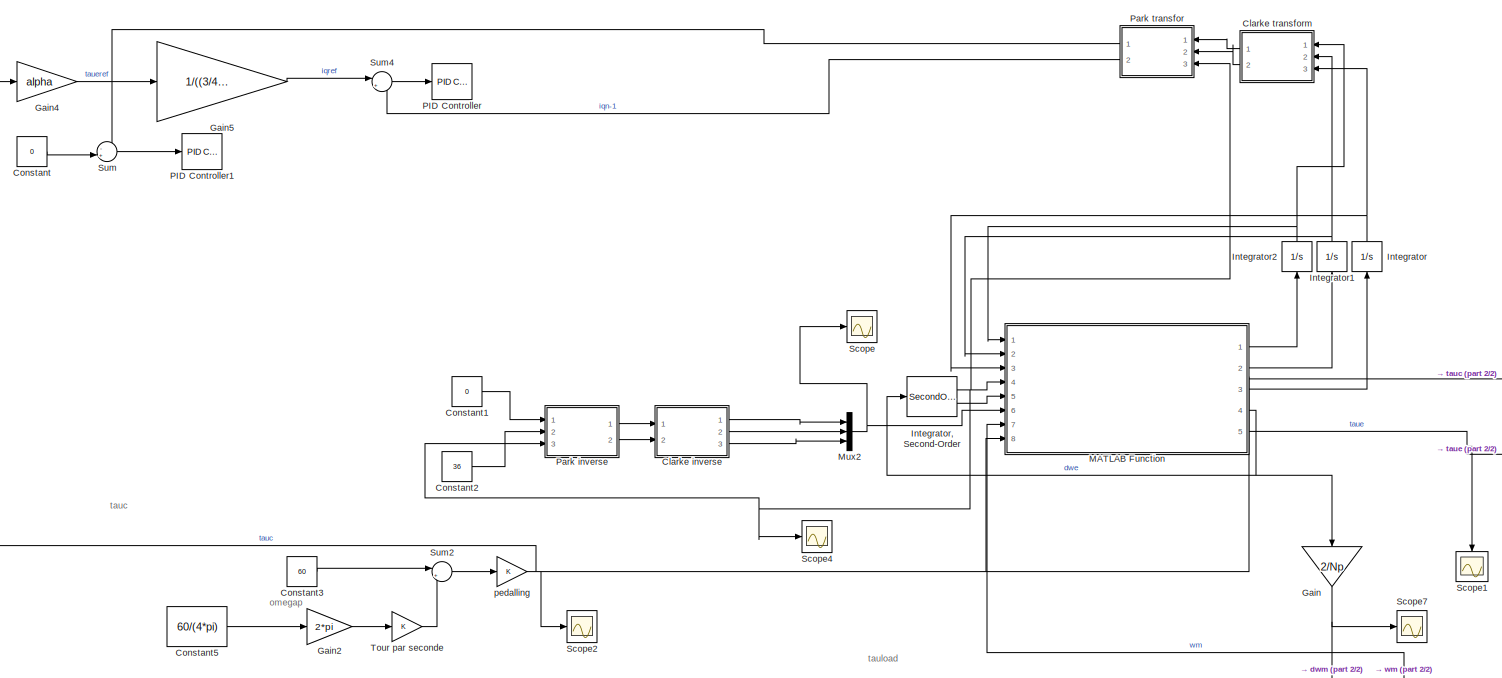
[diagram: root canvas - part 1/2, most of the canvas]
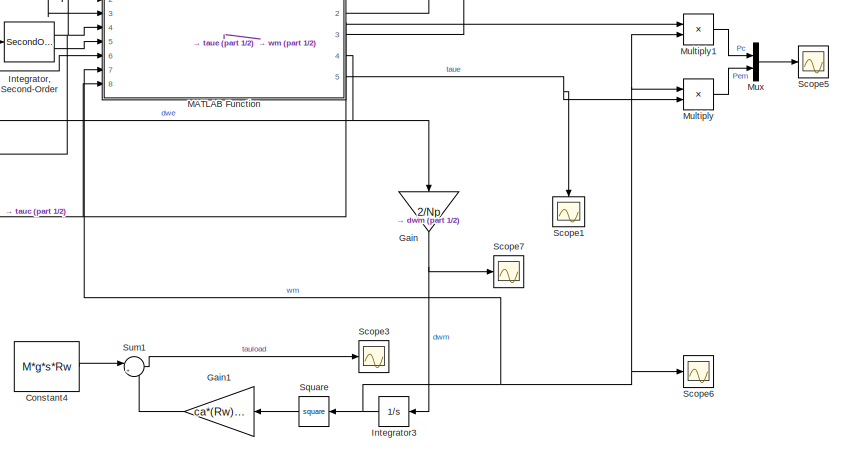
[diagram: root canvas - part 2/2, bottom right region]
MODEL slx_9deb516235e7
KIND model
CONFIG AbsTol = auto
CONFIG EnableMultiTasking = off
CONFIG FixedStep = auto
CONFIG MaxStep = auto
CONFIG MinStep = auto
CONFIG RelTol = 1e-3
CONFIG SampleTimeConstraint = Unconstrained
CONFIG Solver = VariableStepAuto
CONFIG SolverName = VariableStepAuto
CONFIG StartTime = 0.0
CONFIG StopTime = 100
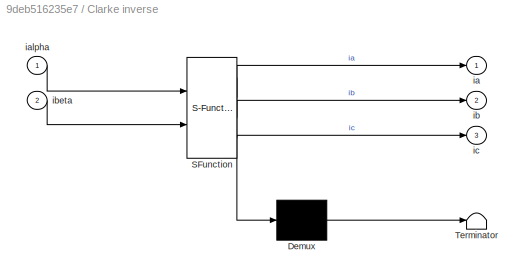
BLOCK [SubSystem] Clarke inverse
  ErrorFcn = Stateflow.Translate.translate
  PermitHierarchicalResolution = ExplicitOnly
  Ports = [2, 3]
  RequestExecContextInheritance = off
  SFBlockType = MATLAB Function
  TreatAsAtomicUnit = on
BLOCK [Demux] Clarke inverse/ Demux 
  Outputs = 1
  Ports = [1, 1]
BLOCK [S-Function] Clarke inverse/ SFunction 
  EnableBusSupport = on
  FunctionName = sf_sfun
  PortCounts = [2 4]
  Ports = [2, 4]
  SFcnIsStateOwnerBlock = off
  SFunctionDeploymentMode = off
  Tag = Stateflow S-Function equations_dyn_snchrone_triphase 1
BLOCK [Terminator] Clarke inverse/ Terminator 
BLOCK [Outport] Clarke inverse/ia
  IconDisplay = Port number
BLOCK [Inport] Clarke inverse/ialpha
  IconDisplay = Port number
BLOCK [Outport] Clarke inverse/ib
  IconDisplay = Port number
  Port = 2
BLOCK [Inport] Clarke inverse/ibeta
  IconDisplay = Port number
  Port = 2
BLOCK [Outport] Clarke inverse/ic
  IconDisplay = Port number
  Port = 3
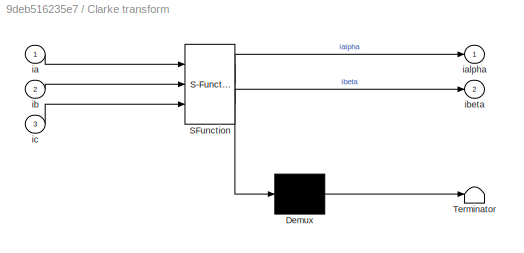
BLOCK [SubSystem] Clarke transform 
  ErrorFcn = Stateflow.Translate.translate
  PermitHierarchicalResolution = ExplicitOnly
  Ports = [3, 2]
  RequestExecContextInheritance = off
  SFBlockType = MATLAB Function
  TreatAsAtomicUnit = on
BLOCK [Demux] Clarke transform / Demux 
  Outputs = 1
  Ports = [1, 1]
BLOCK [S-Function] Clarke transform / SFunction 
  EnableBusSupport = on
  FunctionName = sf_sfun
  PortCounts = [3 3]
  Ports = [3, 3]
  SFcnIsStateOwnerBlock = off
  SFunctionDeploymentMode = off
  Tag = Stateflow S-Function equations_dyn_snchrone_triphase 3
BLOCK [Terminator] Clarke transform / Terminator 
BLOCK [Inport] Clarke transform /ia
  IconDisplay = Port number
BLOCK [Outport] Clarke transform /ialpha
  IconDisplay = Port number
BLOCK [Inport] Clarke transform /ib
  IconDisplay = Port number
  Port = 2
BLOCK [Outport] Clarke transform /ibeta
  IconDisplay = Port number
  Port = 2
BLOCK [Inport] Clarke transform /ic
  IconDisplay = Port number
  Port = 3
BLOCK [Constant] Constant
  Commented = on
  Value = 0
BLOCK [Constant] Constant1
  Value = 0
BLOCK [Constant] Constant2
  Value = 36
BLOCK [Constant] Constant3
  Value = 60
BLOCK [Constant] Constant4
  Value = M*g*s*Rw
BLOCK [Constant] Constant5
  Value = 60/(4*pi)
BLOCK [Gain] Gain
  Gain = 2/Np
  OutDataTypeStr = Inherit: Inherit via internal rule
  ParamDataTypeStr = Inherit: Inherit via internal rule
  SaturateOnIntegerOverflow = off
BLOCK [Gain] Gain1
  Gain = ca*(Rw)^3
  OutDataTypeStr = Inherit: Inherit via internal rule
  ParamDataTypeStr = Inherit: Inherit via internal rule
  SaturateOnIntegerOverflow = off
BLOCK [Gain] Gain2
  Gain = 2*pi
  OutDataTypeStr = Inherit: Inherit via internal rule
  ParamDataTypeStr = Inherit: Inherit via internal rule
  SaturateOnIntegerOverflow = off
BLOCK [Gain] Gain4
  Commented = on
  Gain = alpha
  OutDataTypeStr = Inherit: Inherit via internal rule
  ParamDataTypeStr = Inherit: Inherit via internal rule
  SaturateOnIntegerOverflow = off
BLOCK [Gain] Gain5
  Commented = on
  Gain = 1/((3/4)*Np*Lambdam)
  OutDataTypeStr = Inherit: Inherit via internal rule
  ParamDataTypeStr = Inherit: Inherit via internal rule
  SaturateOnIntegerOverflow = off
BLOCK [Integrator] Integrator
  Ports = [1, 1]
BLOCK [SecondOrderIntegrator] Integrator, Second-Order
  Ports = [1, 2]
BLOCK [Integrator] Integrator1
  Ports = [1, 1]
BLOCK [Integrator] Integrator2
  Ports = [1, 1]
BLOCK [Integrator] Integrator3
  Ports = [1, 1]
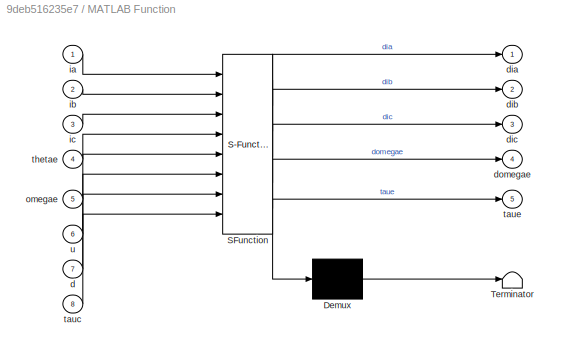
BLOCK [SubSystem] MATLAB Function
  ErrorFcn = Stateflow.Translate.translate
  PermitHierarchicalResolution = ExplicitOnly
  Ports = [8, 5]
  RequestExecContextInheritance = off
  SFBlockType = MATLAB Function
  TreatAsAtomicUnit = on
BLOCK [Demux] MATLAB Function/ Demux 
  Outputs = 1
  Ports = [1, 1]
BLOCK [S-Function] MATLAB Function/ SFunction 
  EnableBusSupport = on
  FunctionName = sf_sfun
  PortCounts = [8 6]
  Ports = [8, 6]
  SFcnIsStateOwnerBlock = off
  SFunctionDeploymentMode = off
  Tag = Stateflow S-Function equations_dyn_snchrone_triphase 2
BLOCK [Terminator] MATLAB Function/ Terminator 
BLOCK [Inport] MATLAB Function/d
  IconDisplay = Port number
  Port = 7
BLOCK [Outport] MATLAB Function/dia
  IconDisplay = Port number
BLOCK [Outport] MATLAB Function/dib
  IconDisplay = Port number
  Port = 2
BLOCK [Outport] MATLAB Function/dic
  IconDisplay = Port number
  Port = 3
BLOCK [Outport] MATLAB Function/domegae
  IconDisplay = Port number
  Port = 4
BLOCK [Inport] MATLAB Function/ia
  IconDisplay = Port number
BLOCK [Inport] MATLAB Function/ib
  IconDisplay = Port number
  Port = 2
BLOCK [Inport] MATLAB Function/ic
  IconDisplay = Port number
  Port = 3
BLOCK [Inport] MATLAB Function/omegae
  IconDisplay = Port number
  Port = 5
BLOCK [Inport] MATLAB Function/tauc
  IconDisplay = Port number
  Port = 8
BLOCK [Outport] MATLAB Function/taue
  IconDisplay = Port number
  Port = 5
BLOCK [Inport] MATLAB Function/thetae
  IconDisplay = Port number
  Port = 4
BLOCK [Inport] MATLAB Function/u
  IconDisplay = Port number
  Port = 6
BLOCK [Product] Multiply
  InputSameDT = off
  OutDataTypeStr = Inherit: Inherit via internal rule
  Ports = [2, 1]
  RndMeth = Floor
  SaturateOnIntegerOverflow = off
BLOCK [Product] Multiply1
  InputSameDT = off
  OutDataTypeStr = Inherit: Inherit via internal rule
  Ports = [2, 1]
  RndMeth = Floor
  SaturateOnIntegerOverflow = off
BLOCK [Mux] Mux
  DisplayOption = bar
  Inputs = 2
  Ports = [2, 1]
BLOCK [Mux] Mux2
  DisplayOption = bar
  Inputs = 3
  Ports = [3, 1]
BLOCK [Reference] PID Controller  REF=simulink/Continuous/PID Controller
  Commented = on
  Ports = [1, 1]
  SourceBlock = simulink/Continuous/PID Controller
  SourceProductBaseCode = SL
  SourceProductName = Simulink
  SourceType = PID 1dof
BLOCK [Reference] PID Controller1  REF=simulink/Continuous/PID Controller
  Commented = on
  Ports = [1, 1]
  SourceBlock = simulink/Continuous/PID Controller
  SourceProductBaseCode = SL
  SourceProductName = Simulink
  SourceType = PID 1dof
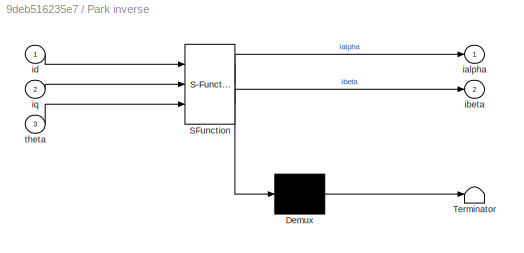
BLOCK [SubSystem] Park inverse 
  ErrorFcn = Stateflow.Translate.translate
  PermitHierarchicalResolution = ExplicitOnly
  Ports = [3, 2]
  RequestExecContextInheritance = off
  SFBlockType = MATLAB Function
  TreatAsAtomicUnit = on
BLOCK [Demux] Park inverse / Demux 
  Outputs = 1
  Ports = [1, 1]
BLOCK [S-Function] Park inverse / SFunction 
  EnableBusSupport = on
  FunctionName = sf_sfun
  PortCounts = [3 3]
  Ports = [3, 3]
  SFcnIsStateOwnerBlock = off
  SFunctionDeploymentMode = off
  Tag = Stateflow S-Function equations_dyn_snchrone_triphase 4
BLOCK [Terminator] Park inverse / Terminator 
BLOCK [Outport] Park inverse /ialpha
  IconDisplay = Port number
BLOCK [Outport] Park inverse /ibeta
  IconDisplay = Port number
  Port = 2
BLOCK [Inport] Park inverse /id
  IconDisplay = Port number
BLOCK [Inport] Park inverse /iq
  IconDisplay = Port number
  Port = 2
BLOCK [Inport] Park inverse /theta
  IconDisplay = Port number
  Port = 3
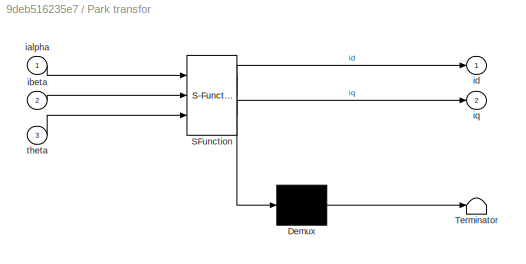
BLOCK [SubSystem] Park transfor 
  ErrorFcn = Stateflow.Translate.translate
  PermitHierarchicalResolution = ExplicitOnly
  Ports = [3, 2]
  RequestExecContextInheritance = off
  SFBlockType = MATLAB Function
  TreatAsAtomicUnit = on
BLOCK [Demux] Park transfor / Demux 
  Outputs = 1
  Ports = [1, 1]
BLOCK [S-Function] Park transfor / SFunction 
  EnableBusSupport = on
  FunctionName = sf_sfun
  PortCounts = [3 3]
  Ports = [3, 3]
  SFcnIsStateOwnerBlock = off
  SFunctionDeploymentMode = off
  Tag = Stateflow S-Function equations_dyn_snchrone_triphase 5
BLOCK [Terminator] Park transfor / Terminator 
BLOCK [Inport] Park transfor /ialpha
  IconDisplay = Port number
BLOCK [Inport] Park transfor /ibeta
  IconDisplay = Port number
  Port = 2
BLOCK [Outport] Park transfor /id
  IconDisplay = Port number
BLOCK [Outport] Park transfor /iq
  IconDisplay = Port number
  Port = 2
BLOCK [Inport] Park transfor /theta
  IconDisplay = Port number
  Port = 3
BLOCK [Scope] Scope
  Floating = off
  NumInputPorts = 1
  Ports = [1]
  ScopeSpecificationString = Simulink.scopes.TimeScopeBlockCfg('CurrentConfiguration', extmgr.ConfigurationSet(extmgr.Configuration('Core','General UI',true),extmgr.Configuration('Core','Source UI',true),extmgr.Configuration('Sources','WiredSimulink',true),extmgr.Configuration('Visuals','Time Domain',true,'SerializedDisplays',{struct('MinYLimReal','-34.59319','MaxYLimReal','33.85765','YLabelReal','','MinYLimMag','0.00000','Ma...<+1402ch>
BLOCK [Scope] Scope1
  Floating = off
  NumInputPorts = 1
  Ports = [1]
  ScopeSpecificationString = Simulink.scopes.TimeScopeBlockCfg('CurrentConfiguration', extmgr.ConfigurationSet(extmgr.Configuration('Core','General UI',true,'FigureColor',[0.941176470588235 0.941176470588235 0.941176470588235]),extmgr.Configuration('Core','Source UI',true),extmgr.Configuration('Sources','WiredSimulink',true,'DataLoggingVariableName','ScopeData3'),extmgr.Configuration('Visuals','Time Domain',true,'SerializedDi...<+1640ch>
BLOCK [Scope] Scope2
  Floating = off
  NumInputPorts = 1
  Ports = [1]
  ScopeSpecificationString = Simulink.scopes.TimeScopeBlockCfg('CurrentConfiguration', extmgr.ConfigurationSet(extmgr.Configuration('Core','General UI',true),extmgr.Configuration('Core','Source UI',true),extmgr.Configuration('Sources','WiredSimulink',true,'DataLoggingVariableName','ScopeData1'),extmgr.Configuration('Visuals','Time Domain',true,'SerializedDisplays',{struct('MinYLimReal','20.00000','MaxYLimReal','40.00000','YLa...<+1369ch>
BLOCK [Scope] Scope3
  Floating = off
  NumInputPorts = 1
  Ports = [1]
  ScopeSpecificationString = Simulink.scopes.TimeScopeBlockCfg('CurrentConfiguration', extmgr.ConfigurationSet(extmgr.Configuration('Core','General UI',true),extmgr.Configuration('Core','Source UI',true),extmgr.Configuration('Sources','WiredSimulink',true,'DataLoggingVariableName','ScopeData2'),extmgr.Configuration('Visuals','Time Domain',true,'SerializedDisplays',{struct('MinYLimReal','-1.00000','MaxYLimReal','1.00000','YLab...<+1366ch>
BLOCK [Scope] Scope4
  Floating = off
  NumInputPorts = 1
  Ports = [1]
  ScopeSpecificationString = Simulink.scopes.TimeScopeBlockCfg('CurrentConfiguration', extmgr.ConfigurationSet(extmgr.Configuration('Core','General UI',true),extmgr.Configuration('Core','Source UI',true),extmgr.Configuration('Sources','WiredSimulink',true,'DataLoggingVariableName','ScopeData4'),extmgr.Configuration('Visuals','Time Domain',true,'SerializedDisplays',{struct('MinYLimReal','-1.00000','MaxYLimReal','1.00000','YLab...<+1414ch>
BLOCK [Scope] Scope5
  Floating = off
  NumInputPorts = 1
  Ports = [1]
  ScopeSpecificationString = Simulink.scopes.TimeScopeBlockCfg('CurrentConfiguration', extmgr.ConfigurationSet(extmgr.Configuration('Core','General UI',true,'FigureColor',[0.941176470588235 0.941176470588235 0.941176470588235]),extmgr.Configuration('Core','Source UI',true),extmgr.Configuration('Sources','WiredSimulink',true,'DataLoggingVariableName','ScopeData1'),extmgr.Configuration('Visuals','Time Domain',true,'SerializedDi...<+2234ch>
BLOCK [Scope] Scope6
  Floating = off
  NumInputPorts = 1
  Ports = [1]
  ScopeSpecificationString = Simulink.scopes.TimeScopeBlockCfg('CurrentConfiguration', extmgr.ConfigurationSet(extmgr.Configuration('Core','General UI',true,'FigureColor',[0.941176470588235 0.941176470588235 0.941176470588235]),extmgr.Configuration('Core','Source UI',true),extmgr.Configuration('Sources','WiredSimulink',true,'DataLoggingVariableName','ScopeData2'),extmgr.Configuration('Visuals','Time Domain',true,'SerializedDi...<+1657ch>
BLOCK [Scope] Scope7
  Floating = off
  NumInputPorts = 1
  Ports = [1]
  ScopeSpecificationString = Simulink.scopes.TimeScopeBlockCfg('CurrentConfiguration', extmgr.ConfigurationSet(extmgr.Configuration('Core','General UI',true),extmgr.Configuration('Core','Source UI',true),extmgr.Configuration('Sources','WiredSimulink',true,'DataLoggingVariableName','ScopeData3'),extmgr.Configuration('Visuals','Time Domain',true,'SerializedDisplays',{struct('MinYLimReal','0.00386','MaxYLimReal','0.00956','YLabe...<+1360ch>
BLOCK [Math] Square
  Operator = square
  OutputSignalType = real
  Ports = [1, 1]
BLOCK [Sum] Sum
  Commented = on
  IconShape = round
  InputSameDT = off
  Inputs = -+|
  OutDataTypeStr = Inherit: Inherit via internal rule
  Ports = [2, 1]
  SaturateOnIntegerOverflow = off
BLOCK [Sum] Sum1
  IconShape = round
  InputSameDT = off
  Inputs = |++
  OutDataTypeStr = Inherit: Inherit via internal rule
  Ports = [2, 1]
  SaturateOnIntegerOverflow = off
BLOCK [Sum] Sum2
  IconShape = round
  InputSameDT = off
  Inputs = |+-
  OutDataTypeStr = Inherit: Inherit via internal rule
  Ports = [2, 1]
  SaturateOnIntegerOverflow = off
BLOCK [Sum] Sum4
  Commented = on
  IconShape = round
  InputSameDT = off
  Inputs = |+-
  OutDataTypeStr = Inherit: Inherit via internal rule
  Ports = [2, 1]
  SaturateOnIntegerOverflow = off
BLOCK [Gain] Tour par seconde
  OutDataTypeStr = Inherit: Inherit via internal rule
  ParamDataTypeStr = Inherit: Inherit via internal rule
  SaturateOnIntegerOverflow = off
BLOCK [Gain] pedalling 
  OutDataTypeStr = Inherit: Inherit via internal rule
  ParamDataTypeStr = Inherit: Inherit via internal rule
  SaturateOnIntegerOverflow = off
ANNOTATION (root): omegap
ANNOTATION (root): tauc
ANNOTATION (root): tauload
LINE Clarke inverse:1 -> Mux2:1
LINE Clarke inverse:2 -> Mux2:2
LINE Clarke inverse:3 -> Mux2:3
LINE Clarke transform :1 -> Park transfor :1
LINE Clarke transform :2 -> Park transfor :2
LINE Constant1:1 -> Park inverse :1
LINE Constant2:1 -> Park inverse :2
LINE Constant3:1 -> Sum2:1
LINE Constant4:1 -> Sum1:1
LINE Constant5:1 -> Gain2:1
LINE Constant:1 -> Sum:2
LINE Gain1:1 -> Sum1:2
LINE Gain2:1 -> Tour par seconde:1
LINE Gain4:1 -> Gain5:1
LINE Gain5:1 -> Sum4:1
NET Gain:1 -> Integrator3:1, Scope7:1
NET Integrator, Second-Order:1 -> MATLAB Function:4, Park inverse :3, Park transfor :3, Scope4:1
LINE Integrator, Second-Order:2 -> MATLAB Function:5
NET Integrator1:1 -> Clarke transform :2, MATLAB Function:2
NET Integrator2:1 -> Clarke transform :1, MATLAB Function:1
NET Integrator3:1 -> MATLAB Function:7, Multiply1:2, Multiply:1, Scope6:1, Square:1
NET Integrator:1 -> Clarke transform :3, MATLAB Function:3
LINE MATLAB Function:1 -> Integrator2:1
LINE MATLAB Function:2 -> Integrator1:1
LINE MATLAB Function:3 -> Integrator:1
NET MATLAB Function:4 -> Gain:1, Integrator, Second-Order:1
NET MATLAB Function:5 -> Multiply:2, Scope1:1
LINE Multiply1:1 -> Mux:1
LINE Multiply:1 -> Mux:2
NET Mux2:1 -> MATLAB Function:6, Scope:1
LINE Mux:1 -> Scope5:1
LINE Park inverse :1 -> Clarke inverse:1
LINE Park inverse :2 -> Clarke inverse:2
LINE Park transfor :1 -> Sum:1
LINE Park transfor :2 -> Sum4:2
LINE Square:1 -> Gain1:1
LINE Sum1:1 -> Scope3:1
LINE Sum2:1 -> pedalling :1
LINE Sum4:1 -> PID Controller:1
LINE Sum:1 -> PID Controller1:1
LINE Tour par seconde:1 -> Sum2:2
NET pedalling :1 -> Gain4:1, MATLAB Function:8, Multiply1:1, Scope2:1
note: NET lines group one-source signal fan-out (src -> all destinations, sorted); 1:1 wires keep LINE
CHART Clarke inverse states=1 transitions=1
  STATE_LABEL 'eML_blk_kernel()'
  STATE_LABEL 'SCRIPT:\nfunction [ia,ib,ic]= fcn(ialpha,ibeta)\nI = [ialpha; ibeta; 0];\nM_C=[1 0 0;1/sqrt(3) 2/sqrt(3) 0; 1 1 1];\nsolu=inv(M_C)*I;\nia = solu(1);\nib=solu(2);\nic= solu(3);\nend\n'
CHART MATLAB Function states=1 transitions=1
  STATE_LABEL 'eML_blk_kernel()'
  STATE_LABEL "SCRIPT:\nfunction [dia, dib, dic, domegae, taue] = DynamiqueSynchroneTriphase(ia,ib, ic, thetae, omegae, u, d, tauc)\nRs=0.124;   %R STATOR\nLs=0.0021;   %L Stator\nLambdam=0.0744; %Flux magnétique\nNp=52;  %Nb poles\nJm=0.0028;  %Moment d'inertie moteur\nM=92;   %Masse totale\nRw=0.33;\nJt=M*Rw*Rw;\n\n\nva = u(1); vb = u(2); vc = u(3);\ndia = va/Ls - (Rs/Ls) * ia + (Lambdam/Ls) * omegae*sin(thetae);\ndib = vb/...<+316ch>"
CHART Clarke transform
 states=1 transitions=1
  STATE_LABEL 'eML_blk_kernel()'
  STATE_LABEL 'SCRIPT:\nfunction [ialpha,ibeta]= fcn(ia,ib,ic)\nI =[ ia;ib;ic];\nM_C=[1 0 0;1/sqrt(3) 2/sqrt(3) 0; 1 1 1];\nsolu=(M_C)*I;\nialpha= solu(1);\nibeta=solu(2);\nend\n'
CHART Park inverse
 states=1 transitions=1
  STATE_LABEL 'eML_blk_kernel()'
  STATE_LABEL 'SCRIPT:\nfunction [ialpha,ibeta]= fcn(id,iq,theta)\nI=[id; iq]\nM_P=[cos(theta) sin(theta); -sin(theta) cos(theta)];\nsolu=inv(M_P)*I;\nialpha = solu(1);\nibeta=solu(2);\nend\n'
CHART Park transfor
 states=1 transitions=1
  STATE_LABEL 'eML_blk_kernel()'
  STATE_LABEL 'SCRIPT:\nfunction [id,iq]= fcn(ialpha,ibeta,theta)\n\nI=[ialpha;ibeta];\nM_P=[cos(theta) sin(theta); -sin(theta) cos(theta)];\nsolu=M_P*I;\nid=solu(1);\niq=solu(2);\n\nend\n'
